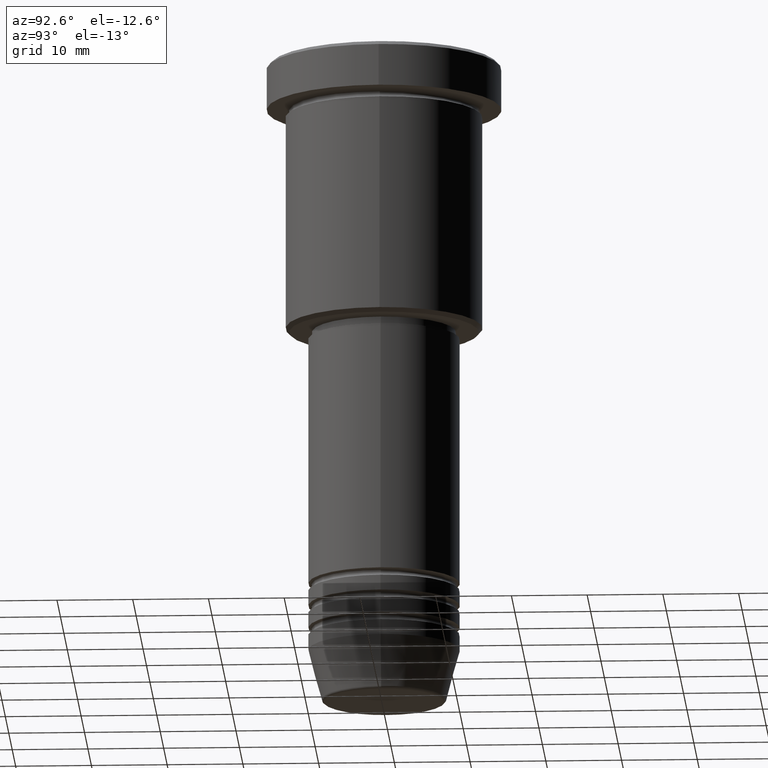
[diagram: clean part render]
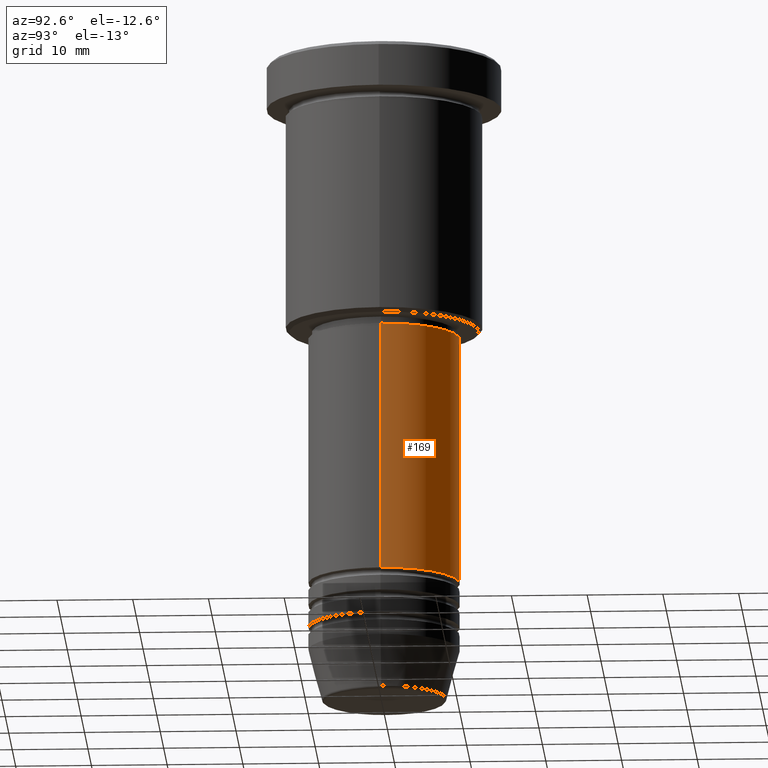
[diagram: same view with one face highlighted and labeled with its STEP entity id]
A machine part, auxiliary view. The second image highlights one B-rep face of the part: STEP entity #169.
In plain terms, the highlighted cylindrical surface (partial cylindrical patch) has radius 10 mm, axis along (-0, -0, 1).
Its self-contained STEP definition (entity closure, byte-faithful):
#109 = VERTEX_POINT ( 'NONE', #342 ) ;
#160 = EDGE_CURVE ( 'NONE', #1044, #109, #891, .T. ) ;
#169 = ADVANCED_FACE ( 'NONE', ( #924 ), #1007, .T. ) ;
#186 = CARTESIAN_POINT ( 'NONE',  ( 0.000000000000000000, 0.000000000000000000, 0.000000000000000000 ) ) ;
#250 = ORIENTED_EDGE ( 'NONE', *, *, #709, .F. ) ;
#252 = AXIS2_PLACEMENT_3D ( 'NONE', #186, #871, #475 ) ;
#269 = EDGE_CURVE ( 'NONE', #821, #109, #753, .T. ) ;
#271 = CARTESIAN_POINT ( 'NONE',  ( 0.000000000000000000, 0.000000000000000000, -36.99999999999998579 ) ) ;
#307 = VECTOR ( 'NONE', #562, 1000.000000000000000 ) ;
#342 = CARTESIAN_POINT ( 'NONE',  ( -10.00000000000000000, 1.224646799147353256E-15, -36.99999999999998579 ) ) ;
#381 = CARTESIAN_POINT ( 'NONE',  ( 10.00000000000000000, 0.000000000000000000, 0.000000000000000000 ) ) ;
#447 = DIRECTION ( 'NONE',  ( 1.000000000000000000, 0.000000000000000000, 0.000000000000000000 ) ) ;
#475 = DIRECTION ( 'NONE',  ( 1.000000000000000000, 0.000000000000000000, 0.000000000000000000 ) ) ;
#495 = CARTESIAN_POINT ( 'NONE',  ( -10.00000000000000000, 1.224646799147353256E-15, -69.99999999999998579 ) ) ;
#498 = AXIS2_PLACEMENT_3D ( 'NONE', #271, #646, #447 ) ;
#518 = DIRECTION ( 'NONE',  ( -0.000000000000000000, -0.000000000000000000, 1.000000000000000000 ) ) ;
#526 = VECTOR ( 'NONE', #1122, 1000.000000000000000 ) ;
#562 = DIRECTION ( 'NONE',  ( -0.000000000000000000, -0.000000000000000000, 1.000000000000000000 ) ) ;
#644 = CARTESIAN_POINT ( 'NONE',  ( 0.000000000000000000, 0.000000000000000000, -69.99999999999998579 ) ) ;
#646 = DIRECTION ( 'NONE',  ( -0.000000000000000000, -0.000000000000000000, 1.000000000000000000 ) ) ;
#664 = ORIENTED_EDGE ( 'NONE', *, *, #160, .F. ) ;
#709 = EDGE_CURVE ( 'NONE', #962, #1044, #1117, .T. ) ;
#753 = LINE ( 'NONE', #1128, #307 ) ;
#797 = AXIS2_PLACEMENT_3D ( 'NONE', #644, #518, #998 ) ;
#811 = CARTESIAN_POINT ( 'NONE',  ( 10.00000000000000000, 0.000000000000000000, -36.99999999999998579 ) ) ;
#821 = VERTEX_POINT ( 'NONE', #495 ) ;
#824 = ORIENTED_EDGE ( 'NONE', *, *, #907, .T. ) ;
#825 = ORIENTED_EDGE ( 'NONE', *, *, #269, .T. ) ;
#871 = DIRECTION ( 'NONE',  ( -0.000000000000000000, -0.000000000000000000, 1.000000000000000000 ) ) ;
#891 = CIRCLE ( 'NONE', #498, 10.00000000000000000 ) ;
#907 = EDGE_CURVE ( 'NONE', #962, #821, #1124, .T. ) ;
#924 = FACE_OUTER_BOUND ( 'NONE', #1161, .T. ) ;
#962 = VERTEX_POINT ( 'NONE', #1171 ) ;
#998 = DIRECTION ( 'NONE',  ( 1.000000000000000000, 0.000000000000000000, 0.000000000000000000 ) ) ;
#1007 = CYLINDRICAL_SURFACE ( 'NONE', #252, 10.00000000000000000 ) ;
#1044 = VERTEX_POINT ( 'NONE', #811 ) ;
#1117 = LINE ( 'NONE', #381, #526 ) ;
#1122 = DIRECTION ( 'NONE',  ( -0.000000000000000000, -0.000000000000000000, 1.000000000000000000 ) ) ;
#1124 = CIRCLE ( 'NONE', #797, 10.00000000000000000 ) ;
#1128 = CARTESIAN_POINT ( 'NONE',  ( -10.00000000000000000, 1.224646799147353256E-15, 0.000000000000000000 ) ) ;
#1161 = EDGE_LOOP ( 'NONE', ( #824, #825, #664, #250 ) ) ;
#1171 = CARTESIAN_POINT ( 'NONE',  ( 10.00000000000000000, 0.000000000000000000, -69.99999999999998579 ) ) ;